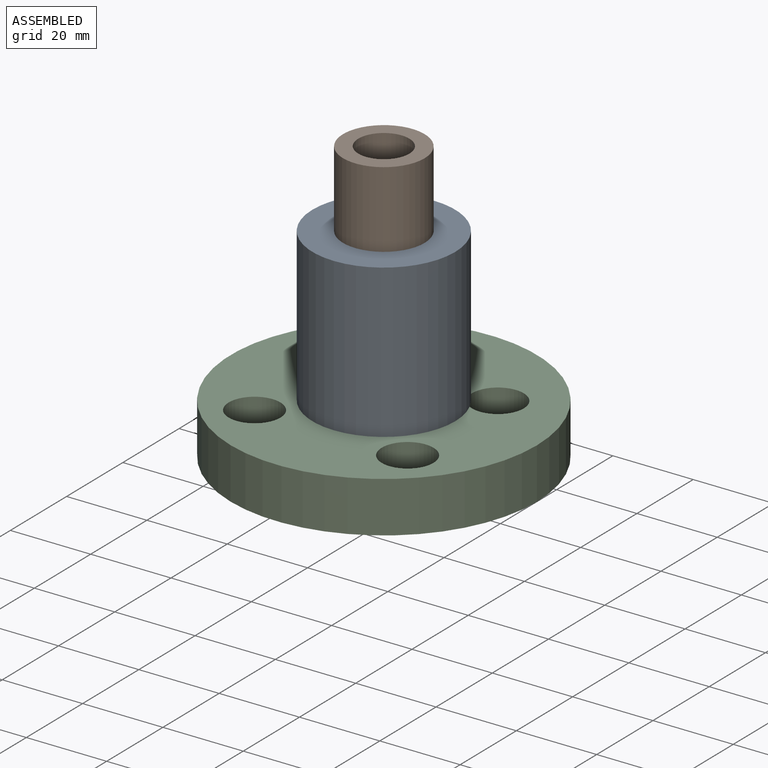
[diagram: assembled view]
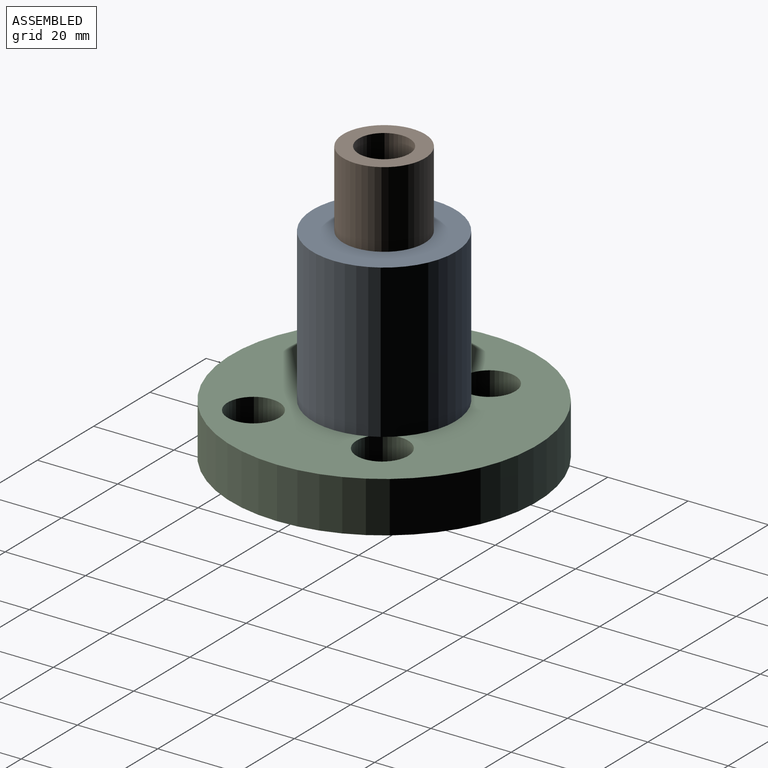
[diagram: assembled view, second angle]
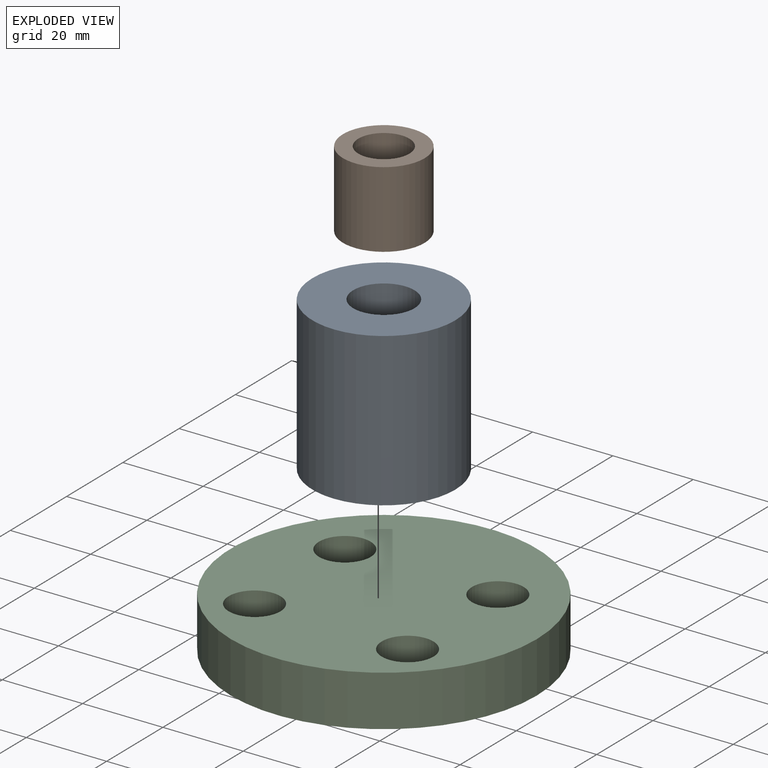
[diagram: exploded view]
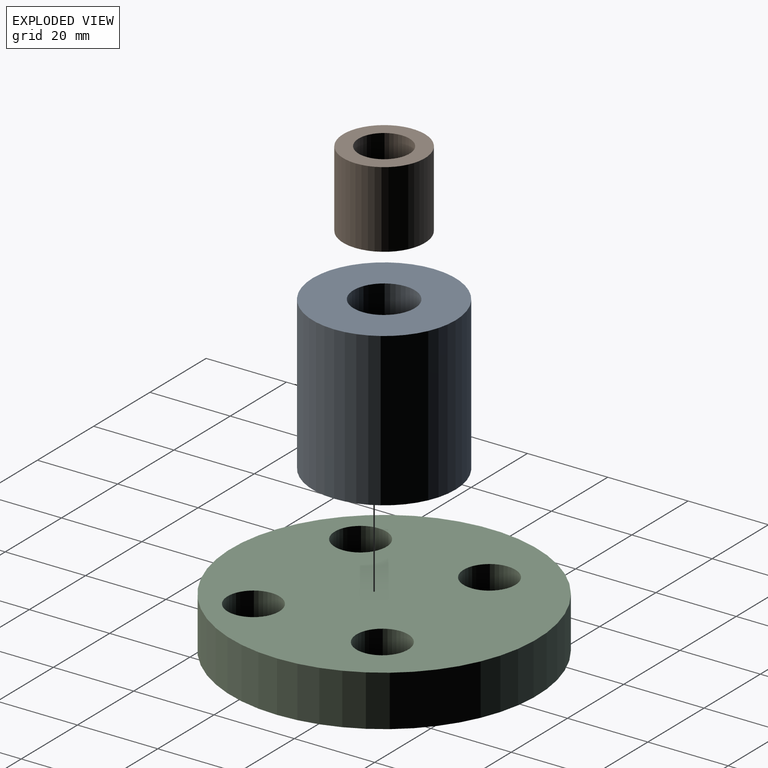
[diagram: exploded view, second angle]
ASSEMBLY  parts=3 mates=4
PART A: 4 faces, bbox 35.6x35.6x38.1 mm
  f0: plane 35.56x35.56mm, normal (0,0,-1), area 810.7mm2, adj f2,f3
  f1: plane 35.56x35.56mm, normal (0,0,1), area 810.7mm2, adj f2,f3
  f2: cylinder r=17.78mm len=38.1mm, axis (0,0,1), area 4256.3mm2, adj f0,f1
  f3: cylinder r=7.62mm len=38.1mm, axis (0,0,1), area 1824.1mm2, adj f0,f1
PART B: 4 faces, bbox 20.3x20.3x19.1 mm
  f0: plane 20.32x20.32mm, normal (0,0,-1), area 197.6mm2, adj f2,f3
  f1: plane 20.32x20.32mm, normal (0,0,1), area 197.6mm2, adj f2,f3
  f2: cylinder r=10.16mm len=20.32mm, axis (0,0,1), area 1216.1mm2, adj f0,f1
  f3: cylinder r=6.35mm len=19.05mm, axis (0,0,1), area 760.1mm2, adj f0,f1
PART C: 7 faces, bbox 76.2x76.2x12.7 mm
  f0: cylinder r=6.43mm len=12.86mm, axis (0,0,-1), area 513.2mm2, adj f5,f6
  f1: cylinder r=6.43mm len=12.86mm, axis (0,0,-1), area 513.2mm2, adj f5,f6
  f2: cylinder r=6.43mm len=12.86mm, axis (0,0,-1), area 513.2mm2, adj f5,f6
  f3: cylinder r=6.43mm len=12.86mm, axis (0,0,-1), area 513.2mm2, adj f5,f6
  f4: cylinder r=38.1mm len=76.2mm, axis (0,0,-1), area 3040.2mm2, adj f5,f6
  f5: plane 76.2x76.2mm, normal (0,0,1), area 4040.6mm2, adj f0,f1,f2,f3,f4
  f6: plane 76.2x76.2mm, normal (0,0,-1), area 4040.6mm2, adj f0,f1,f2,f3,f4
PLACE A t=(8.28,12.92,-22.04)mm
PLACE B t=(6.56,12.92,16.06)mm
PLACE C t=(32.73,25.97,-34.74)mm
MATE planar C.f4 <-> A.f2  axis (0,0,1) through (-2.04,12.92,-22.04)mm
MATE fastened B.f2 <-> A.f2  axis (0,0,1) through (-2.04,12.92,16.06)mm
MATE planar A.f2 <-> B.f2  axis (0,0,1) through (-2.04,12.92,16.06)mm
MATE fastened A.f2 <-> C.f4  axis (0,0,1) through (-2.04,12.92,-22.04)mm
